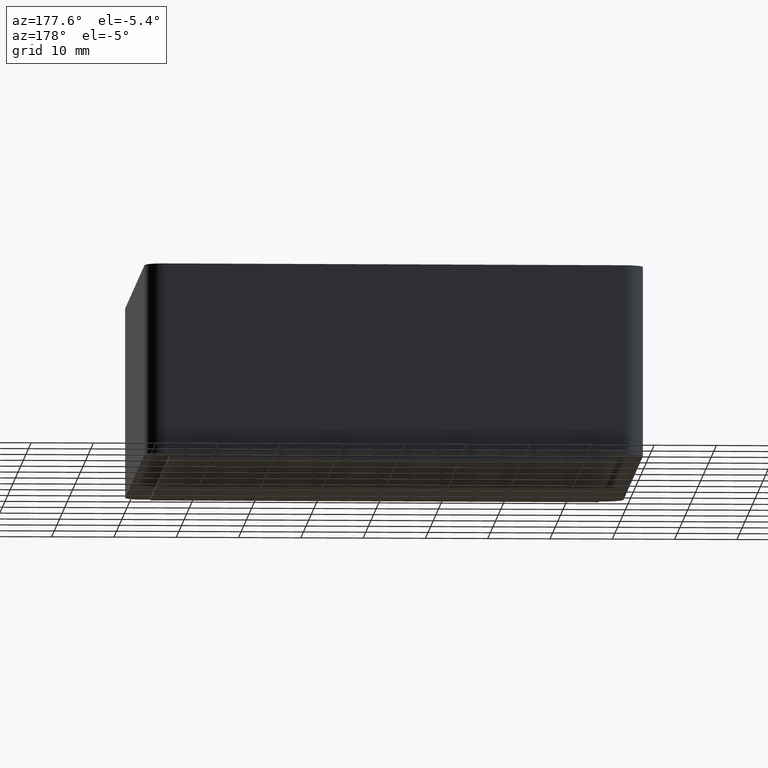
[diagram: clean part render]
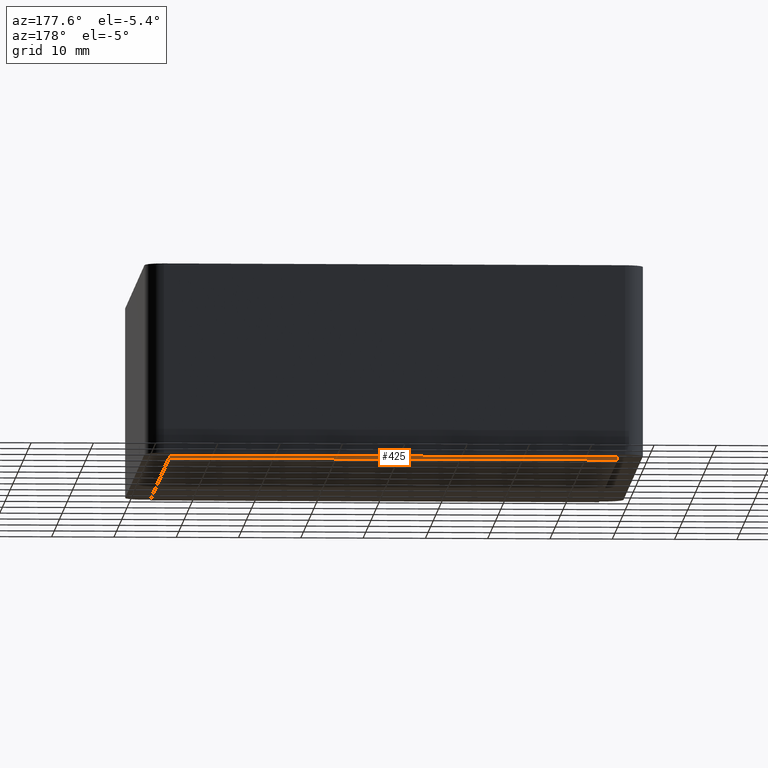
[diagram: same view with one face highlighted and labeled with its STEP entity id]
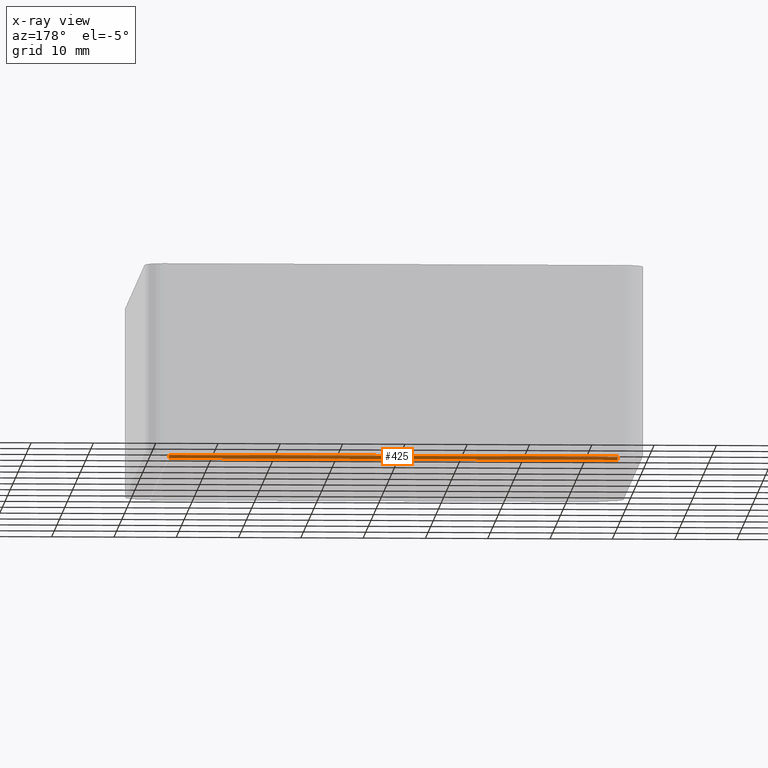
[diagram: x-ray of the same camera — body ghosted, the highlighted face saturated]
A machine part, auxiliary view. The second image highlights one B-rep face of the part: STEP entity #425.
The next image is the same camera in x-ray: the body ghosted, the highlighted face saturated — about 0% of this face is hidden behind the body in this view.
In plain terms, the highlighted planar face has unit normal (0, 1, 0).
Its self-contained STEP definition (entity closure, byte-faithful):
#23=PLANE('',#459);
#43=FACE_OUTER_BOUND('',#67,.T.);
#67=EDGE_LOOP('',(#331,#332,#333,#334));
#102=LINE('',#665,#146);
#103=LINE('',#668,#147);
#104=LINE('',#670,#148);
#105=LINE('',#671,#149);
#146=VECTOR('',#538,0.5);
#147=VECTOR('',#541,72.);
#148=VECTOR('',#542,72.);
#149=VECTOR('',#543,0.5);
#204=VERTEX_POINT('',#659);
#206=VERTEX_POINT('',#663);
#207=VERTEX_POINT('',#667);
#208=VERTEX_POINT('',#669);
#254=EDGE_CURVE('',#204,#206,#102,.T.);
#255=EDGE_CURVE('',#204,#207,#103,.T.);
#256=EDGE_CURVE('',#208,#206,#104,.T.);
#257=EDGE_CURVE('',#207,#208,#105,.T.);
#331=ORIENTED_EDGE('',*,*,#255,.F.);
#332=ORIENTED_EDGE('',*,*,#254,.T.);
#333=ORIENTED_EDGE('',*,*,#256,.F.);
#334=ORIENTED_EDGE('',*,*,#257,.F.);
#425=ADVANCED_FACE('',(#43),#23,.T.);
#459=AXIS2_PLACEMENT_3D('',#666,#539,#540);
#538=DIRECTION('',(0.,0.,-1.));
#539=DIRECTION('center_axis',(2.46716227694479E-16,1.,0.));
#540=DIRECTION('ref_axis',(1.,0.,0.));
#541=DIRECTION('',(-1.,2.46716227694479E-16,0.));
#542=DIRECTION('',(1.,-2.46716227694479E-16,0.));
#543=DIRECTION('',(0.,0.,-1.));
#659=CARTESIAN_POINT('',(36.,36.,0.));
#663=CARTESIAN_POINT('',(36.,36.,-0.5));
#665=CARTESIAN_POINT('',(36.,36.,0.));
#666=CARTESIAN_POINT('Origin',(-36.,36.,0.));
#667=CARTESIAN_POINT('',(-36.,36.,0.));
#668=CARTESIAN_POINT('',(-18.,36.,0.));
#669=CARTESIAN_POINT('',(-36.,36.,-0.5));
#670=CARTESIAN_POINT('',(36.,36.,-0.5));
#671=CARTESIAN_POINT('',(-36.,36.,0.));